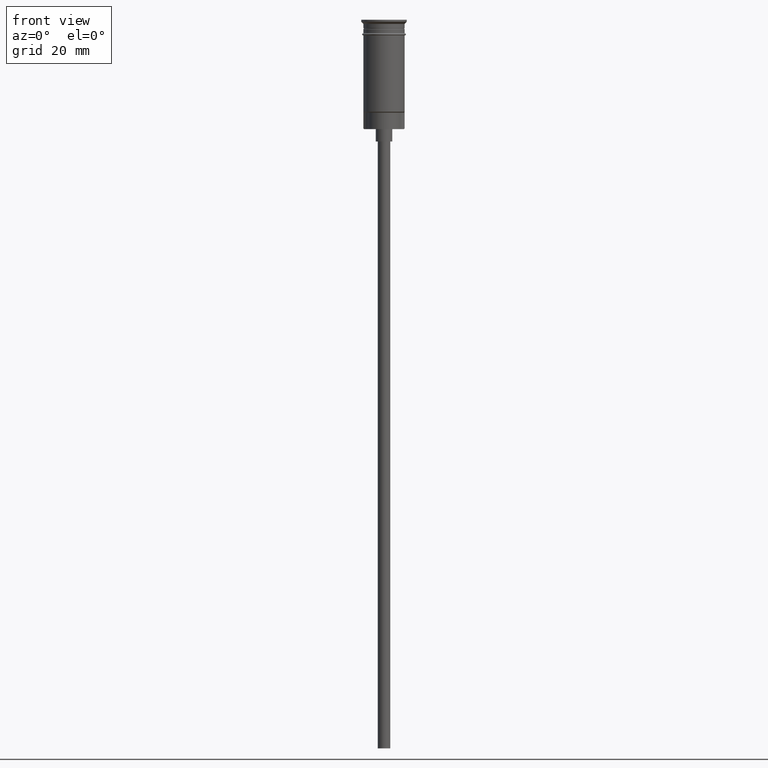
[diagram: clean part render]
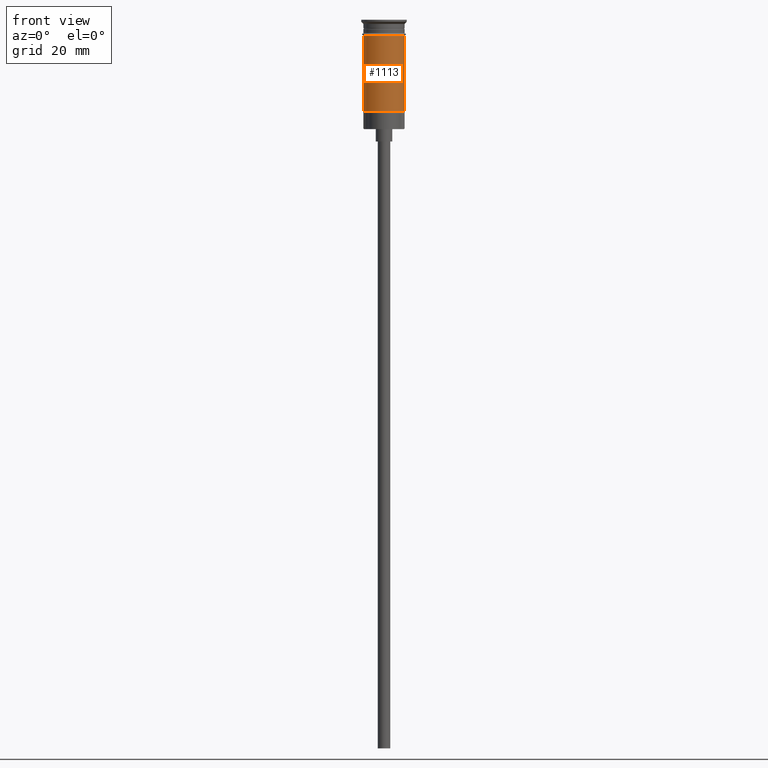
[diagram: same view with one face highlighted and labeled with its STEP entity id]
A machine part, front view. The second image highlights one B-rep face of the part: STEP entity #1113.
In plain terms, the highlighted cylindrical surface (edge-blend (fillet) strip) has radius 5 mm, axis along (-0, -0, 1).
Its self-contained STEP definition (entity closure, byte-faithful):
#175 = AXIS2_PLACEMENT_3D ( 'NONE', #1153, #1050, #551 ) ;
#195 = CARTESIAN_POINT ( 'NONE',  ( 4.999999999999996447, 6.123233995736761352E-16, -22.30000000000001137 ) ) ;
#212 = LINE ( 'NONE', #344, #356 ) ;
#344 = CARTESIAN_POINT ( 'NONE',  ( -4.999999999999996447, 6.123233995736762338E-16, 0.000000000000000000 ) ) ;
#345 = ORIENTED_EDGE ( 'NONE', *, *, #924, .T. ) ;
#356 = VECTOR ( 'NONE', #1589, 1000.000000000000000 ) ;
#383 = AXIS2_PLACEMENT_3D ( 'NONE', #1211, #467, #852 ) ;
#453 = EDGE_CURVE ( 'NONE', #1553, #1483, #596, .T. ) ;
#456 = CIRCLE ( 'NONE', #383, 4.999999999999996447 ) ;
#467 = DIRECTION ( 'NONE',  ( -0.000000000000000000, -0.000000000000000000, 1.000000000000000000 ) ) ;
#551 = DIRECTION ( 'NONE',  ( 1.000000000000000000, 0.000000000000000000, 0.000000000000000000 ) ) ;
#588 = CIRCLE ( 'NONE', #896, 4.999999999999999112 ) ;
#596 = LINE ( 'NONE', #1493, #994 ) ;
#620 = ORIENTED_EDGE ( 'NONE', *, *, #1520, .F. ) ;
#647 = DIRECTION ( 'NONE',  ( -0.000000000000000000, -0.000000000000000000, 1.000000000000000000 ) ) ;
#852 = DIRECTION ( 'NONE',  ( -1.000000000000000000, 0.000000000000000000, 0.000000000000000000 ) ) ;
#896 = AXIS2_PLACEMENT_3D ( 'NONE', #1362, #647, #1138 ) ;
#924 = EDGE_CURVE ( 'NONE', #1065, #1553, #456, .T. ) ;
#929 = ORIENTED_EDGE ( 'NONE', *, *, #1365, .F. ) ;
#977 = DIRECTION ( 'NONE',  ( -0.000000000000000000, -0.000000000000000000, 1.000000000000000000 ) ) ;
#989 = CARTESIAN_POINT ( 'NONE',  ( -4.999999999999999112, 6.123233995736765296E-16, -3.799999999999998934 ) ) ;
#994 = VECTOR ( 'NONE', #977, 1000.000000000000000 ) ;
#995 = VERTEX_POINT ( 'NONE', #989 ) ;
#1007 = CARTESIAN_POINT ( 'NONE',  ( -4.999999999999993783, 0.000000000000000000, -22.30000000000001137 ) ) ;
#1009 = ORIENTED_EDGE ( 'NONE', *, *, #453, .T. ) ;
#1050 = DIRECTION ( 'NONE',  ( -0.000000000000000000, -0.000000000000000000, 1.000000000000000000 ) ) ;
#1065 = VERTEX_POINT ( 'NONE', #1007 ) ;
#1100 = EDGE_LOOP ( 'NONE', ( #929, #345, #1009, #620 ) ) ;
#1113 = ADVANCED_FACE ( 'NONE', ( #1403 ), #1531, .T. ) ;
#1114 = CARTESIAN_POINT ( 'NONE',  ( 4.999999999999999112, 0.000000000000000000, -3.799999999999998934 ) ) ;
#1138 = DIRECTION ( 'NONE',  ( 1.000000000000000000, 0.000000000000000000, 0.000000000000000000 ) ) ;
#1153 = CARTESIAN_POINT ( 'NONE',  ( 0.000000000000000000, 0.000000000000000000, 0.000000000000000000 ) ) ;
#1211 = CARTESIAN_POINT ( 'NONE',  ( 0.000000000000000000, 0.000000000000000000, -22.30000000000001137 ) ) ;
#1362 = CARTESIAN_POINT ( 'NONE',  ( 0.000000000000000000, 0.000000000000000000, -3.799999999999998934 ) ) ;
#1365 = EDGE_CURVE ( 'NONE', #1065, #995, #212, .T. ) ;
#1403 = FACE_OUTER_BOUND ( 'NONE', #1100, .T. ) ;
#1483 = VERTEX_POINT ( 'NONE', #1114 ) ;
#1493 = CARTESIAN_POINT ( 'NONE',  ( 4.999999999999996447, 0.000000000000000000, 0.000000000000000000 ) ) ;
#1520 = EDGE_CURVE ( 'NONE', #995, #1483, #588, .T. ) ;
#1531 = CYLINDRICAL_SURFACE ( 'NONE', #175, 4.999999999999996447 ) ;
#1553 = VERTEX_POINT ( 'NONE', #195 ) ;
#1589 = DIRECTION ( 'NONE',  ( -0.000000000000000000, -0.000000000000000000, 1.000000000000000000 ) ) ;